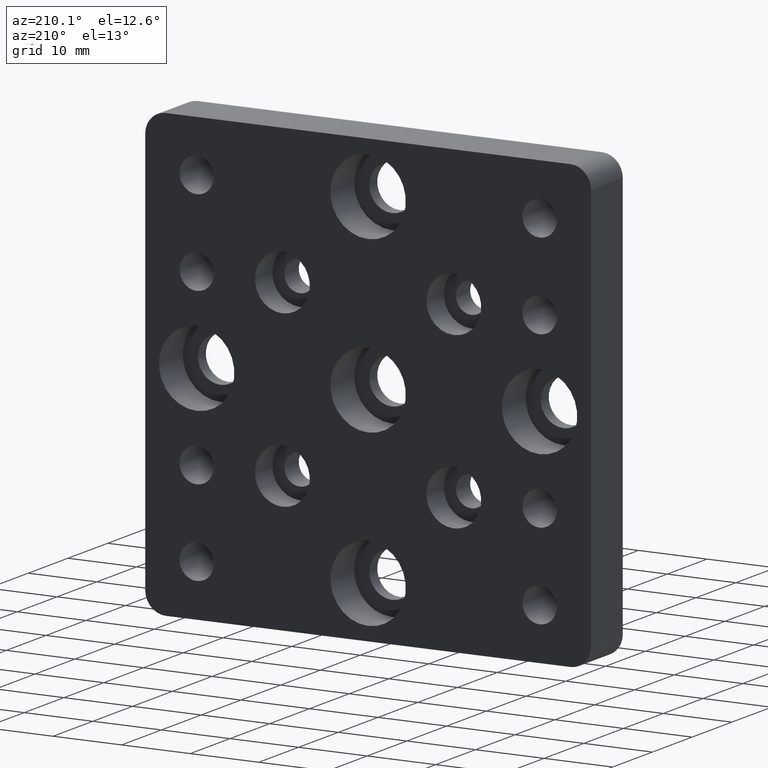
[diagram: clean part render]
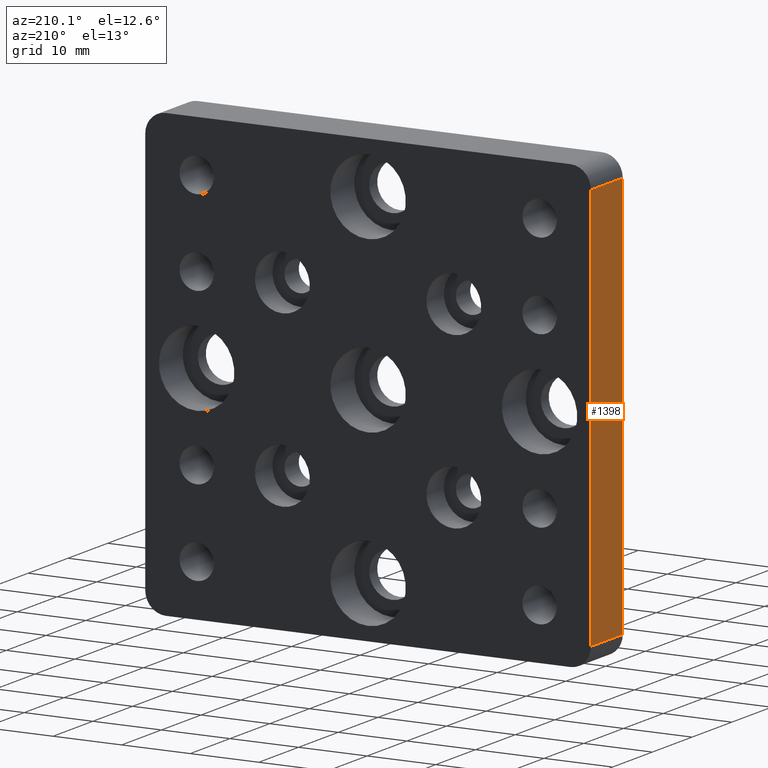
[diagram: same view with one face highlighted and labeled with its STEP entity id]
A machine part, auxiliary view. The second image highlights one B-rep face of the part: STEP entity #1398.
In plain terms, the highlighted planar face has unit normal (1, 0, -0).
Its self-contained STEP definition (entity closure, byte-faithful):
#49 = EDGE_CURVE ( 'NONE', #1047, #118, #605, .T. ) ;
#118 = VERTEX_POINT ( 'NONE', #550 ) ;
#164 = ORIENTED_EDGE ( 'NONE', *, *, #478, .T. ) ;
#243 = VECTOR ( 'NONE', #1004, 1000.000000000000000 ) ;
#408 = ORIENTED_EDGE ( 'NONE', *, *, #639, .F. ) ;
#424 = VERTEX_POINT ( 'NONE', #1951 ) ;
#478 = EDGE_CURVE ( 'NONE', #1326, #1047, #833, .T. ) ;
#550 = CARTESIAN_POINT ( 'NONE',  ( -32.49999999999999300, 0.0000000000000000000, 29.50000000000000000 ) ) ;
#605 = LINE ( 'NONE', #1634, #1499 ) ;
#639 = EDGE_CURVE ( 'NONE', #1326, #424, #2347, .T. ) ;
#680 = PLANE ( 'NONE',  #1858 ) ;
#716 = DIRECTION ( 'NONE',  ( 1.067522139062650400E-016, 0.0000000000000000000, 1.000000000000000000 ) ) ;
#833 = LINE ( 'NONE', #1606, #1972 ) ;
#881 = DIRECTION ( 'NONE',  ( -1.067522139062650400E-016, 0.0000000000000000000, -1.000000000000000000 ) ) ;
#893 = DIRECTION ( 'NONE',  ( 0.0000000000000000000, -1.000000000000000000, 0.0000000000000000000 ) ) ;
#901 = EDGE_LOOP ( 'NONE', ( #408, #164, #1125, #1405 ) ) ;
#1004 = DIRECTION ( 'NONE',  ( -0.0000000000000000000, 1.000000000000000000, -0.0000000000000000000 ) ) ;
#1033 = VECTOR ( 'NONE', #2026, 1000.000000000000000 ) ;
#1044 = CARTESIAN_POINT ( 'NONE',  ( -32.50000000000000000, 8.000000000000000000, -32.50000000000000000 ) ) ;
#1047 = VERTEX_POINT ( 'NONE', #1072 ) ;
#1072 = CARTESIAN_POINT ( 'NONE',  ( -32.50000000000000000, 0.0000000000000000000, -29.50000000000000400 ) ) ;
#1125 = ORIENTED_EDGE ( 'NONE', *, *, #49, .T. ) ;
#1140 = CARTESIAN_POINT ( 'NONE',  ( -32.50000000000000000, 8.000000000000000000, -29.50000000000000400 ) ) ;
#1304 = CARTESIAN_POINT ( 'NONE',  ( -32.50000000000000000, 8.000000000000000000, -32.50000000000000000 ) ) ;
#1326 = VERTEX_POINT ( 'NONE', #1140 ) ;
#1394 = EDGE_CURVE ( 'NONE', #118, #424, #1520, .T. ) ;
#1398 = ADVANCED_FACE ( 'NONE', ( #1690 ), #680, .F. ) ;
#1405 = ORIENTED_EDGE ( 'NONE', *, *, #1394, .T. ) ;
#1499 = VECTOR ( 'NONE', #716, 1000.000000000000000 ) ;
#1520 = LINE ( 'NONE', #2274, #243 ) ;
#1606 = CARTESIAN_POINT ( 'NONE',  ( -32.50000000000000000, 8.000000000000000000, -29.50000000000000400 ) ) ;
#1634 = CARTESIAN_POINT ( 'NONE',  ( -32.50000000000000000, 0.0000000000000000000, -32.50000000000000000 ) ) ;
#1690 = FACE_OUTER_BOUND ( 'NONE', #901, .T. ) ;
#1858 = AXIS2_PLACEMENT_3D ( 'NONE', #1044, #2346, #881 ) ;
#1951 = CARTESIAN_POINT ( 'NONE',  ( -32.49999999999999300, 8.000000000000000000, 29.50000000000000000 ) ) ;
#1972 = VECTOR ( 'NONE', #893, 1000.000000000000000 ) ;
#2026 = DIRECTION ( 'NONE',  ( 1.067522139062650400E-016, 0.0000000000000000000, 1.000000000000000000 ) ) ;
#2274 = CARTESIAN_POINT ( 'NONE',  ( -32.49999999999999300, 8.000000000000000000, 29.50000000000000000 ) ) ;
#2346 = DIRECTION ( 'NONE',  ( 1.000000000000000000, 0.0000000000000000000, -1.067522139062650400E-016 ) ) ;
#2347 = LINE ( 'NONE', #1304, #1033 ) ;